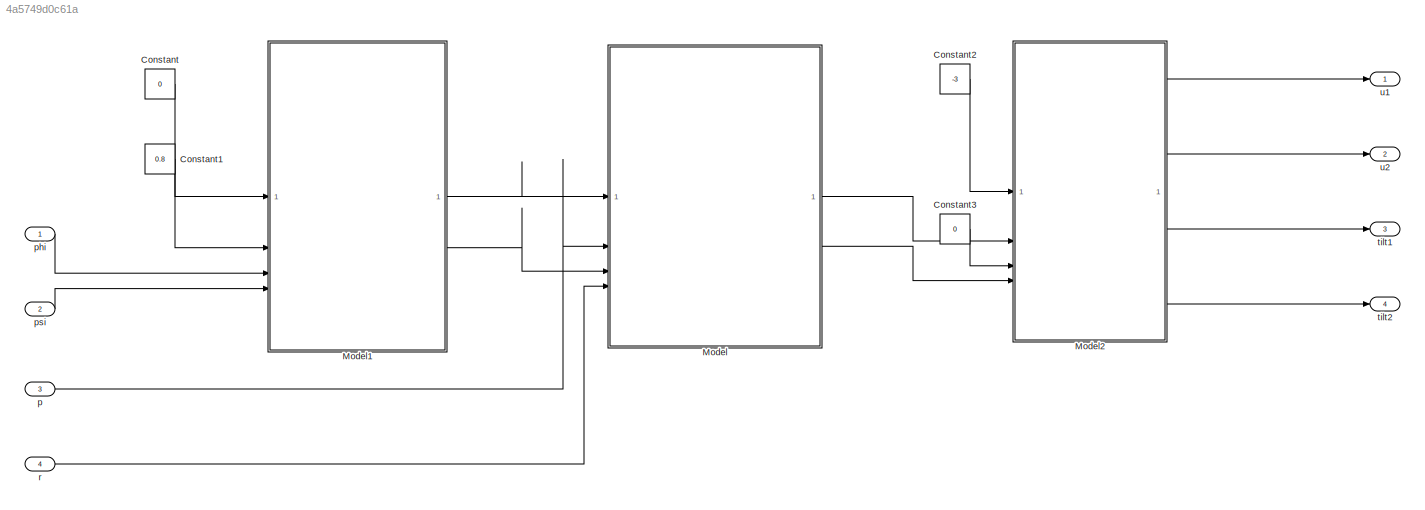
MODEL slx_4a5749d0c61a
KIND model
CONFIG AbsTol = auto
CONFIG EnableMultiTasking = off
CONFIG FixedStep = auto
CONFIG MaxStep = auto
CONFIG MinStep = auto
CONFIG RelTol = 1e-3
CONFIG SampleTimeConstraint = Unconstrained
CONFIG SolverName = VariableStepAuto
CONFIG StartTime = 0.0
CONFIG StopTime = 10.0
BLOCK [Constant] Constant
  Value = 0
BLOCK [Constant] Constant1
  Value = 0.8
BLOCK [Constant] Constant2
  Value = -3
BLOCK [Constant] Constant3
  Value = 0
BLOCK [ModelReference] Model
  ModelNameDialog = RateController.slx
  ModelReferenceVersion = 1.7
BLOCK [ModelReference] Model1
  ModelNameDialog = AttitudeController.slx
  ModelReferenceVersion = 1.5
BLOCK [ModelReference] Model2
  ModelNameDialog = ControlAllocator.slx
  ModelReferenceVersion = 1.4
BLOCK [Inport] p
  Port = 3
BLOCK [Inport] phi
BLOCK [Inport] psi
  Port = 2
BLOCK [Inport] r
  Port = 4
BLOCK [Outport] tilt1
  Port = 3
BLOCK [Outport] tilt2
  Port = 4
BLOCK [Outport] u1
BLOCK [Outport] u2
  Port = 2
LINE Constant1:1 -> Model1:2
LINE Constant2:1 -> Model2:1
LINE Constant3:1 -> Model2:3
LINE Constant:1 -> Model1:1
LINE Model1:1 -> Model:1
LINE Model1:2 -> Model:3
LINE Model2:1 -> u1:1
LINE Model2:2 -> u2:1
LINE Model2:3 -> tilt1:1
LINE Model2:4 -> tilt2:1
LINE Model:1 -> Model2:2
LINE Model:2 -> Model2:4
LINE p:1 -> Model:2
LINE phi:1 -> Model1:3
LINE psi:1 -> Model1:4
LINE r:1 -> Model:4
